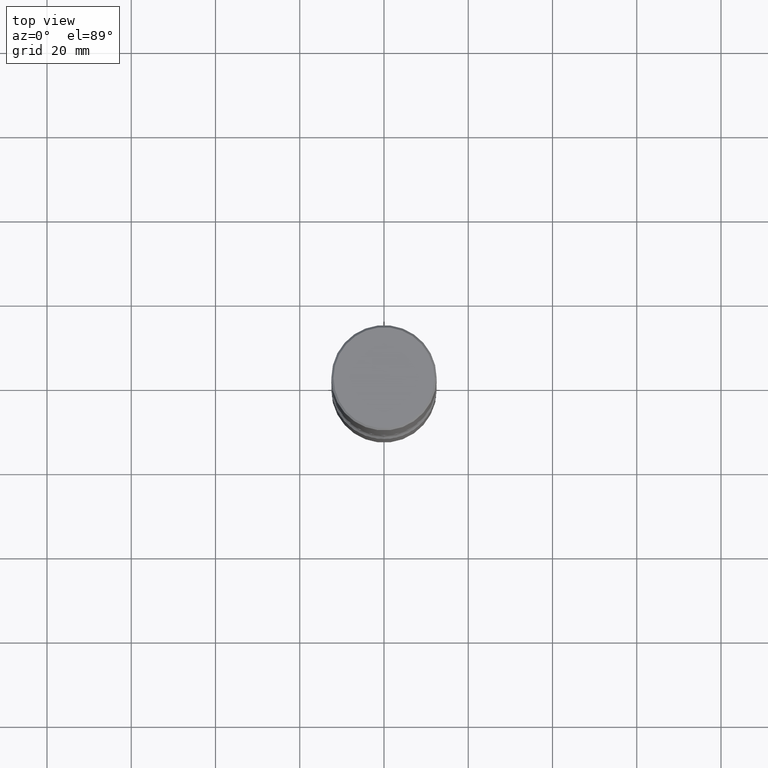
[diagram: clean part render]
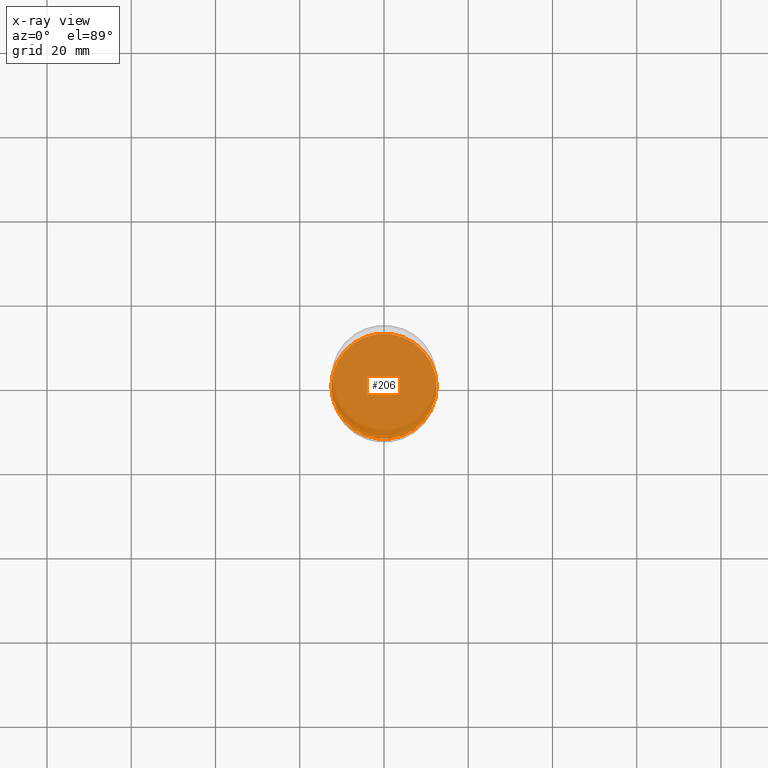
[diagram: x-ray — body ghosted, one internal face saturated and labeled with its STEP entity id]
A machine part, top view, then the same camera in x-ray: the body is ghosted and one INTERNAL B-rep face — a face not visible from any outside direction — is saturated and labeled: STEP entity #206.
In plain terms, the highlighted planar face has unit normal (0, -0, -1).
Its self-contained STEP definition (entity closure, byte-faithful):
#9 = CARTESIAN_POINT ( 'NONE',  ( 1.126456296193059450E-28, -1.608281049111318039E-14, -4.606299999999999173 ) ) ;
#18 = CARTESIAN_POINT ( 'NONE',  ( -0.4921500000000002539, -1.602236492482621413E-14, -4.606299999999999173 ) ) ;
#32 = AXIS2_PLACEMENT_3D ( 'NONE', #56, #532, #406 ) ;
#56 = CARTESIAN_POINT ( 'NONE',  ( 1.126456296193059450E-28, -1.608281049111318039E-14, -4.606299999999999173 ) ) ;
#71 = CIRCLE ( 'NONE', #32, 0.4921500000000002539 ) ;
#76 = AXIS2_PLACEMENT_3D ( 'NONE', #385, #388, #290 ) ;
#140 = ORIENTED_EDGE ( 'NONE', *, *, #433, .T. ) ;
#180 = DIRECTION ( 'NONE',  ( 1.000000000000000000, -6.982962677686270655E-15, 0.000000000000000000 ) ) ;
#206 = ADVANCED_FACE ( 'NONE', ( #426 ), #379, .F. ) ;
#290 = DIRECTION ( 'NONE',  ( -1.000000000000000000, 6.982962677686265922E-15, -4.876176775795935793E-29 ) ) ;
#300 = VERTEX_POINT ( 'NONE', #423 ) ;
#314 = DIRECTION ( 'NONE',  ( -2.445468806185136597E-29, 3.491481338843145583E-15, 1.000000000000000000 ) ) ;
#346 = CIRCLE ( 'NONE', #539, 0.4921500000000002539 ) ;
#379 = PLANE ( 'NONE',  #76 ) ;
#385 = CARTESIAN_POINT ( 'NONE',  ( 1.126456296193059450E-28, -1.608281049111318039E-14, -4.606299999999999173 ) ) ;
#388 = DIRECTION ( 'NONE',  ( 2.438088387897960049E-29, -3.491481338843145188E-15, -1.000000000000000000 ) ) ;
#406 = DIRECTION ( 'NONE',  ( 1.000000000000000000, -6.982962677686270655E-15, 0.000000000000000000 ) ) ;
#423 = CARTESIAN_POINT ( 'NONE',  ( 0.4921500000000002539, -1.951947557293647774E-14, -4.606299999999999173 ) ) ;
#426 = FACE_OUTER_BOUND ( 'NONE', #443, .T. ) ;
#433 = EDGE_CURVE ( 'NONE', #446, #300, #71, .T. ) ;
#443 = EDGE_LOOP ( 'NONE', ( #559, #140 ) ) ;
#444 = EDGE_CURVE ( 'NONE', #300, #446, #346, .T. ) ;
#446 = VERTEX_POINT ( 'NONE', #18 ) ;
#532 = DIRECTION ( 'NONE',  ( -2.445468806185136597E-29, 3.491481338843145583E-15, 1.000000000000000000 ) ) ;
#539 = AXIS2_PLACEMENT_3D ( 'NONE', #9, #314, #180 ) ;
#559 = ORIENTED_EDGE ( 'NONE', *, *, #444, .T. ) ;